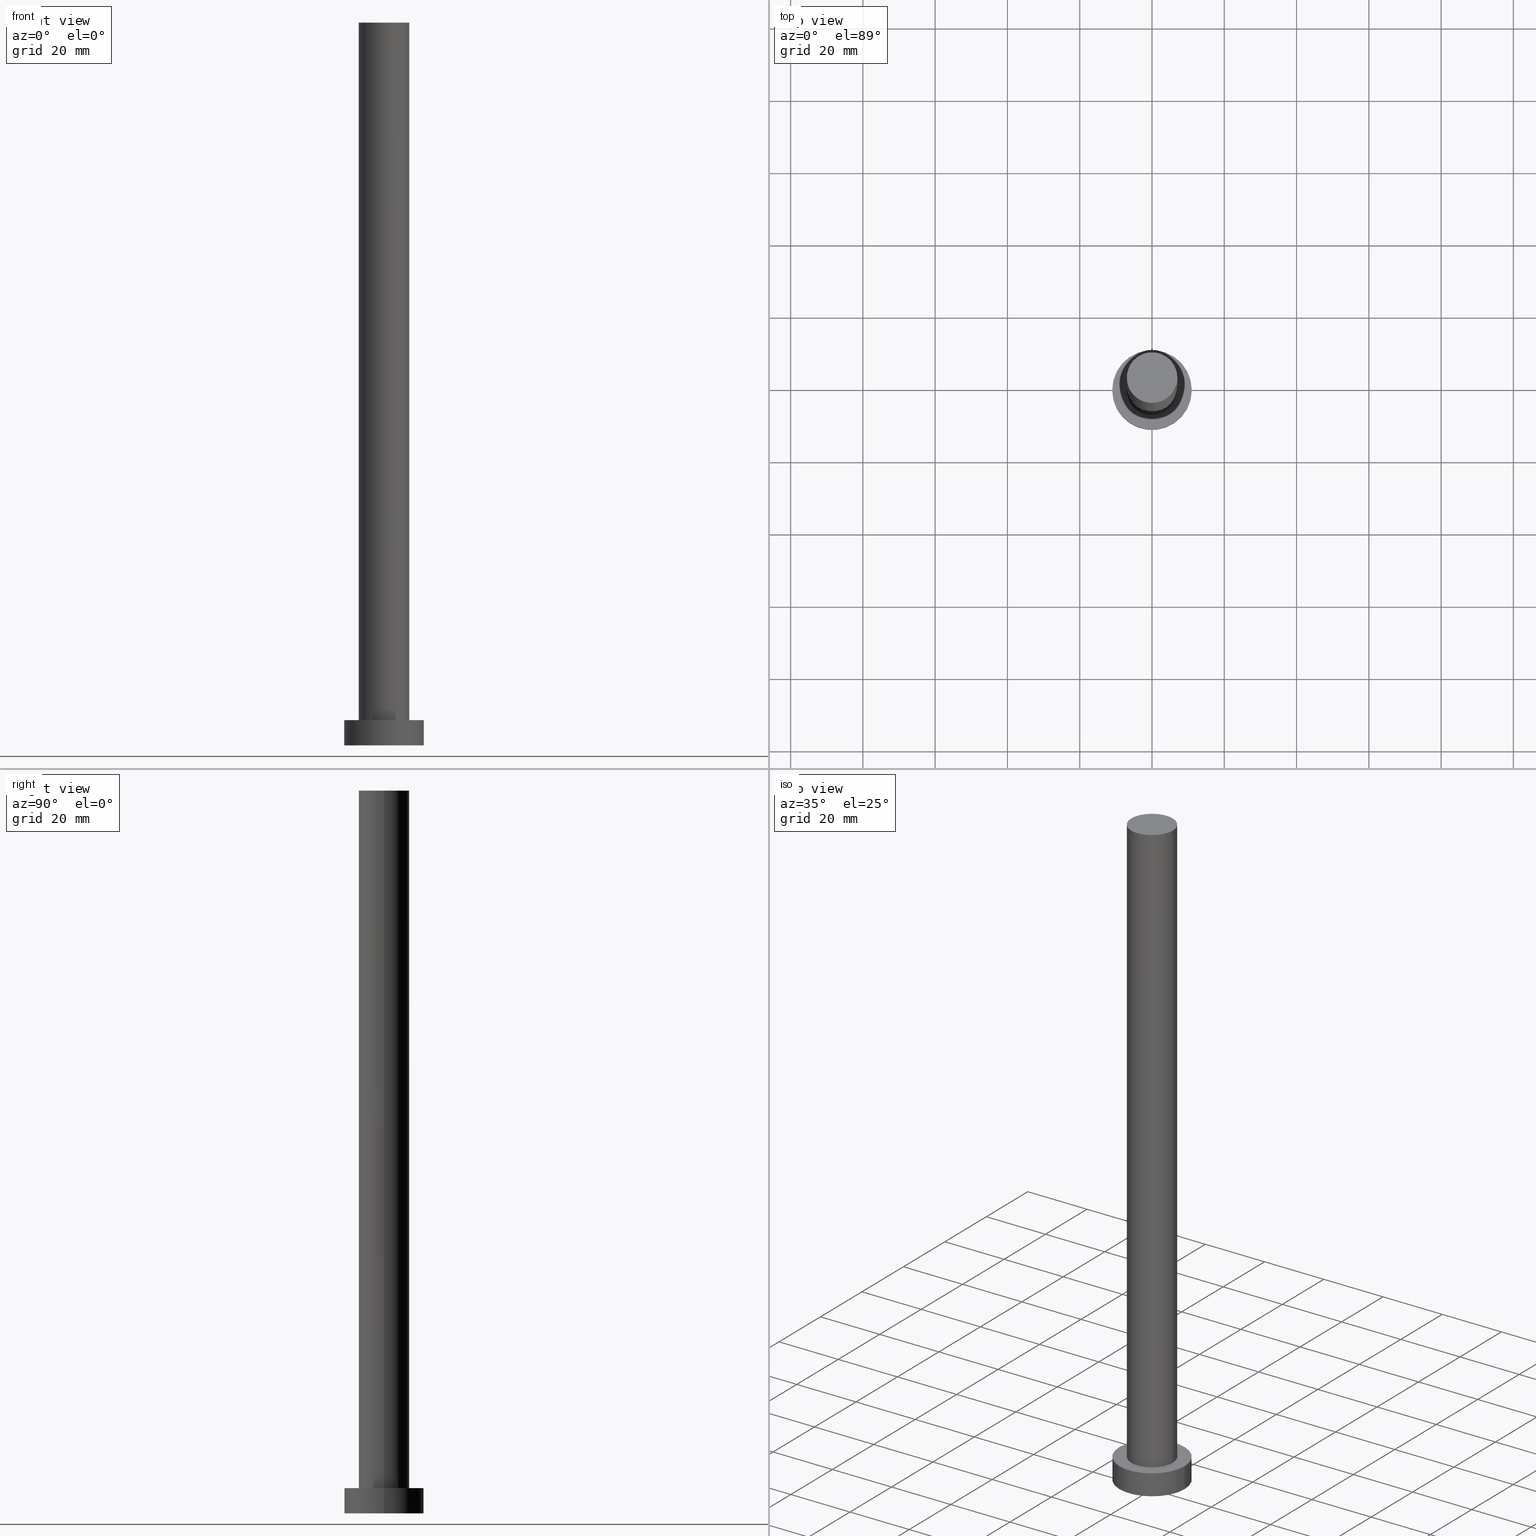
[diagram: canonical four-view strip — front | top / right | iso, engineering-drawing reading convention]
A machine part, canonical four-view strip (front | top / right | iso — engineering-drawing reading convention). The complete STEP part file that produces these views, byte-faithful:
ISO-10303-21;
HEADER;
FILE_DESCRIPTION (( 'STEP AP203' ),
    '1' );
FILE_NAME ('7562.STEP',
    '2023-02-13T10:35:55',
    ( '' ),
    ( '' ),
    'SwSTEP 2.0',
    'SolidWorks 2019',
    '' );
FILE_SCHEMA (( 'CONFIG_CONTROL_DESIGN' ));
ENDSEC;

DATA;
#1 = PERSON_AND_ORGANIZATION_ROLE ( 'creator' ) ;
#2 = DIRECTION ( 'NONE',  ( -0.000000000000000000, -0.000000000000000000, -1.000000000000000000 ) ) ;
#3 = DIRECTION ( 'NONE',  ( 1.000000000000000000, 0.000000000000000000, -0.000000000000000000 ) ) ;
#4 = ORIENTED_EDGE ( 'NONE', *, *, #26, .F. ) ;
#5 = EDGE_CURVE ( 'NONE', #212, #217, #222, .T. ) ;
#6 = CARTESIAN_POINT ( 'NONE',  ( 11.00000000000000000, 1.347111479062088405E-15, 0.000000000000000000 ) ) ;
#7 = AXIS2_PLACEMENT_3D ( 'NONE', #255, #17, #3 ) ;
#8 = LOCAL_TIME ( 11, 35, 55.00000000000000000, #89 ) ;
#9 = ORIENTED_EDGE ( 'NONE', *, *, #5, .F. ) ;
#10 = ORIENTED_EDGE ( 'NONE', *, *, #39, .T. ) ;
#11 = DIRECTION ( 'NONE',  ( 1.000000000000000000, 0.000000000000000000, 0.000000000000000000 ) ) ;
#12 =( LENGTH_UNIT ( ) NAMED_UNIT ( * ) SI_UNIT ( .MILLI., .METRE. ) );
#13 = CARTESIAN_POINT ( 'NONE',  ( 0.000000000000000000, 0.000000000000000000, 200.0000000000000000 ) ) ;
#14 = AXIS2_PLACEMENT_3D ( 'NONE', #238, #96, #20 ) ;
#15 = VERTEX_POINT ( 'NONE', #164 ) ;
#16 = COORDINATED_UNIVERSAL_TIME_OFFSET ( 1, 0, .AHEAD. ) ;
#17 = DIRECTION ( 'NONE',  ( 0.000000000000000000, 0.000000000000000000, 1.000000000000000000 ) ) ;
#18 = SECURITY_CLASSIFICATION_LEVEL ( 'unclassified' ) ;
#19 = VERTEX_POINT ( 'NONE', #246 ) ;
#20 = DIRECTION ( 'NONE',  ( 1.000000000000000000, 0.000000000000000000, 0.000000000000000000 ) ) ;
#21 = APPROVAL ( #25, 'NEUR�EN�' ) ;
#22 = ORIENTED_EDGE ( 'NONE', *, *, #39, .F. ) ;
#23 = CYLINDRICAL_SURFACE ( 'NONE', #190, 7.000000000000000888 ) ;
#24 = EDGE_LOOP ( 'NONE', ( #4, #147 ) ) ;
#25 = APPROVAL_STATUS ( 'not_yet_approved' ) ;
#26 = EDGE_CURVE ( 'NONE', #19, #105, #126, .T. ) ;
#27 = DIRECTION ( 'NONE',  ( 1.000000000000000000, 0.000000000000000000, 0.000000000000000000 ) ) ;
#28 = AXIS2_PLACEMENT_3D ( 'NONE', #197, #237, #59 ) ;
#29 = CC_DESIGN_SECURITY_CLASSIFICATION ( #215, ( #115 ) ) ;
#30 = DIRECTION ( 'NONE',  ( 0.000000000000000000, 0.000000000000000000, 1.000000000000000000 ) ) ;
#31 = ORIENTED_EDGE ( 'NONE', *, *, #193, .T. ) ;
#32 = ORIENTED_EDGE ( 'NONE', *, *, #47, .T. ) ;
#33 = DIRECTION ( 'NONE',  ( -1.000000000000000000, 0.000000000000000000, 0.000000000000000000 ) ) ;
#34 = CC_DESIGN_PERSON_AND_ORGANIZATION_ASSIGNMENT ( #221, #184, ( #115 ) ) ;
#35 = APPLICATION_PROTOCOL_DEFINITION ( 'international standard', 'config_control_design', 1994, #178 ) ;
#36 = ORIENTED_EDGE ( 'NONE', *, *, #47, .F. ) ;
#37 = APPROVAL_PERSON_ORGANIZATION ( #94, #21, #68 ) ;
#38 = COORDINATED_UNIVERSAL_TIME_OFFSET ( 1, 0, .AHEAD. ) ;
#39 = EDGE_CURVE ( 'NONE', #15, #219, #114, .T. ) ;
#40 = CIRCLE ( 'NONE', #14, 11.00000000000000000 ) ;
#41 = EDGE_LOOP ( 'NONE', ( #138, #10 ) ) ;
#42 = DIRECTION ( 'NONE',  ( 0.000000000000000000, 0.000000000000000000, 1.000000000000000000 ) ) ;
#43 = AXIS2_PLACEMENT_3D ( 'NONE', #208, #225, #69 ) ;
#44 = DIRECTION ( 'NONE',  ( -0.000000000000000000, -0.000000000000000000, -1.000000000000000000 ) ) ;
#45 = CARTESIAN_POINT ( 'NONE',  ( -7.000000000000000888, 0.000000000000000000, 200.0000000000000000 ) ) ;
#46 = FACE_OUTER_BOUND ( 'NONE', #218, .T. ) ;
#47 = EDGE_CURVE ( 'NONE', #219, #19, #85, .T. ) ;
#48 = CIRCLE ( 'NONE', #158, 7.000000000000000888 ) ;
#49 =( NAMED_UNIT ( * ) PLANE_ANGLE_UNIT ( ) SI_UNIT ( $, .RADIAN. ) );
#50 = DIRECTION ( 'NONE',  ( 1.000000000000000000, 0.000000000000000000, 0.000000000000000000 ) ) ;
#51 = DIRECTION ( 'NONE',  ( -0.000000000000000000, -0.000000000000000000, -1.000000000000000000 ) ) ;
#52 = AXIS2_PLACEMENT_3D ( 'NONE', #72, #93, #112 ) ;
#53 = CC_DESIGN_PERSON_AND_ORGANIZATION_ASSIGNMENT ( #91, #63, ( #115 ) ) ;
#54 = DATE_AND_TIME ( #148, #8 ) ;
#55 = CALENDAR_DATE ( 2023, 13, 2 ) ;
#56 = AXIS2_PLACEMENT_3D ( 'NONE', #75, #2, #76 ) ;
#57 = SHAPE_DEFINITION_REPRESENTATION ( #236, #231 ) ;
#58 = ORIENTED_EDGE ( 'NONE', *, *, #185, .T. ) ;
#59 = DIRECTION ( 'NONE',  ( -1.000000000000000000, 0.000000000000000000, 0.000000000000000000 ) ) ;
#60 = APPROVAL_PERSON_ORGANIZATION ( #175, #80, #209 ) ;
#61 = DIRECTION ( 'NONE',  ( 0.000000000000000000, 0.000000000000000000, 1.000000000000000000 ) ) ;
#62 = UNCERTAINTY_MEASURE_WITH_UNIT (LENGTH_MEASURE( 1.000000000000000082E-05 ), #12, 'distance_accuracy_value', 'NONE');
#63 = PERSON_AND_ORGANIZATION_ROLE ( 'creator' ) ;
#64 = CARTESIAN_POINT ( 'NONE',  ( 7.000000000000000888, 8.572527594031474176E-16, 200.0000000000000000 ) ) ;
#65 = FACE_OUTER_BOUND ( 'NONE', #240, .T. ) ;
#66 = CC_DESIGN_DATE_AND_TIME_ASSIGNMENT ( #174, #74, ( #87 ) ) ;
#67 = AXIS2_PLACEMENT_3D ( 'NONE', #247, #224, #27 ) ;
#68 = APPROVAL_ROLE ( '' ) ;
#69 = DIRECTION ( 'NONE',  ( 1.000000000000000000, 0.000000000000000000, -0.000000000000000000 ) ) ;
#70 = EDGE_CURVE ( 'NONE', #217, #177, #149, .T. ) ;
#71 = CIRCLE ( 'NONE', #120, 7.000000000000000888 ) ;
#72 = CARTESIAN_POINT ( 'NONE',  ( 0.000000000000000000, 0.000000000000000000, 0.000000000000000000 ) ) ;
#73 = PERSON_AND_ORGANIZATION_ROLE ( 'classification_officer' ) ;
#74 = DATE_TIME_ROLE ( 'creation_date' ) ;
#75 = CARTESIAN_POINT ( 'NONE',  ( 0.000000000000000000, 0.000000000000000000, 200.0000000000000000 ) ) ;
#76 = DIRECTION ( 'NONE',  ( -1.000000000000000000, 0.000000000000000000, 0.000000000000000000 ) ) ;
#77 = APPROVAL_PERSON_ORGANIZATION ( #153, #124, #230 ) ;
#78 = CARTESIAN_POINT ( 'NONE',  ( 0.000000000000000000, 0.000000000000000000, 7.000000000000000000 ) ) ;
#79 = EDGE_LOOP ( 'NONE', ( #22, #31, #242, #36 ) ) ;
#80 = APPROVAL ( #229, 'NEUR�EN�' ) ;
#81 = VECTOR ( 'NONE', #106, 1000.000000000000000 ) ;
#82 = ORIENTED_EDGE ( 'NONE', *, *, #176, .F. ) ;
#83 = CARTESIAN_POINT ( 'NONE',  ( -11.00000000000000000, 0.000000000000000000, 7.000000000000000000 ) ) ;
#84 = CARTESIAN_POINT ( 'NONE',  ( 0.000000000000000000, 0.000000000000000000, 200.0000000000000000 ) ) ;
#85 = LINE ( 'NONE', #170, #154 ) ;
#86 = CARTESIAN_POINT ( 'NONE',  ( 0.000000000000000000, 0.000000000000000000, 0.000000000000000000 ) ) ;
#87 = PRODUCT_DEFINITION ( 'NEZN�M�', '', #115, #144 ) ;
#88 = FACE_OUTER_BOUND ( 'NONE', #79, .T. ) ;
#89 = COORDINATED_UNIVERSAL_TIME_OFFSET ( 1, 0, .AHEAD. ) ;
#90 =( NAMED_UNIT ( * ) SI_UNIT ( $, .STERADIAN. ) SOLID_ANGLE_UNIT ( ) );
#91 = PERSON_AND_ORGANIZATION ( #187, #146 ) ;
#92 = ADVANCED_FACE ( 'NONE', ( #127 ), #130, .T. ) ;
#93 = DIRECTION ( 'NONE',  ( 0.000000000000000000, 0.000000000000000000, 1.000000000000000000 ) ) ;
#94 = PERSON_AND_ORGANIZATION ( #187, #146 ) ;
#95 = PERSON_AND_ORGANIZATION ( #187, #146 ) ;
#96 = DIRECTION ( 'NONE',  ( 0.000000000000000000, 0.000000000000000000, 1.000000000000000000 ) ) ;
#97 = ADVANCED_FACE ( 'NONE', ( #65 ), #205, .T. ) ;
#98 = DIRECTION ( 'NONE',  ( 1.000000000000000000, 0.000000000000000000, 0.000000000000000000 ) ) ;
#99 = ORIENTED_EDGE ( 'NONE', *, *, #207, .F. ) ;
#100 = ORIENTED_EDGE ( 'NONE', *, *, #70, .T. ) ;
#101 = DIRECTION ( 'NONE',  ( 0.000000000000000000, 0.000000000000000000, 1.000000000000000000 ) ) ;
#102 = FACE_BOUND ( 'NONE', #24, .T. ) ;
#103 = CIRCLE ( 'NONE', #182, 11.00000000000000000 ) ;
#104 = EDGE_CURVE ( 'NONE', #212, #133, #220, .T. ) ;
#105 = VERTEX_POINT ( 'NONE', #107 ) ;
#106 = DIRECTION ( 'NONE',  ( -0.000000000000000000, -0.000000000000000000, -1.000000000000000000 ) ) ;
#107 = CARTESIAN_POINT ( 'NONE',  ( 7.000000000000000888, 8.572527594031474176E-16, 7.000000000000000000 ) ) ;
#108 = ADVANCED_FACE ( 'NONE', ( #46 ), #189, .F. ) ;
#109 = PERSON_AND_ORGANIZATION ( #187, #146 ) ;
#110 = AXIS2_PLACEMENT_3D ( 'NONE', #86, #121, #199 ) ;
#111 = APPROVAL_DATE_TIME ( #135, #80 ) ;
#112 = DIRECTION ( 'NONE',  ( 1.000000000000000000, 0.000000000000000000, 0.000000000000000000 ) ) ;
#113 = CALENDAR_DATE ( 2023, 13, 2 ) ;
#114 = CIRCLE ( 'NONE', #181, 7.000000000000000888 ) ;
#115 = PRODUCT_DEFINITION_FORMATION_WITH_SPECIFIED_SOURCE ( 'LIBOVOLN�', '', #196, .NOT_KNOWN. ) ;
#116 = DATE_AND_TIME ( #233, #252 ) ;
#117 = ADVANCED_FACE ( 'NONE', ( #102, #183 ), #201, .T. ) ;
#118 = CYLINDRICAL_SURFACE ( 'NONE', #28, 11.00000000000000000 ) ;
#119 = CIRCLE ( 'NONE', #223, 11.00000000000000000 ) ;
#120 = AXIS2_PLACEMENT_3D ( 'NONE', #159, #42, #11 ) ;
#121 = DIRECTION ( 'NONE',  ( 0.000000000000000000, 0.000000000000000000, 1.000000000000000000 ) ) ;
#122 = CARTESIAN_POINT ( 'NONE',  ( 0.000000000000000000, 0.000000000000000000, 0.000000000000000000 ) ) ;
#123 = CARTESIAN_POINT ( 'NONE',  ( -11.00000000000000000, 0.000000000000000000, 7.000000000000000000 ) ) ;
#124 = APPROVAL ( #206, 'NEUR�EN�' ) ;
#125 = ORIENTED_EDGE ( 'NONE', *, *, #185, .F. ) ;
#126 = CIRCLE ( 'NONE', #141, 7.000000000000000888 ) ;
#127 = FACE_OUTER_BOUND ( 'NONE', #41, .T. ) ;
#128 = APPROVAL_DATE_TIME ( #54, #21 ) ;
#129 = CALENDAR_DATE ( 2023, 13, 2 ) ;
#130 = PLANE ( 'NONE',  #43 ) ;
#131 = AXIS2_PLACEMENT_3D ( 'NONE', #143, #166, #33 ) ;
#132 = CARTESIAN_POINT ( 'NONE',  ( -11.00000000000000000, 0.000000000000000000, 0.000000000000000000 ) ) ;
#133 = VERTEX_POINT ( 'NONE', #132 ) ;
#134 = FACE_OUTER_BOUND ( 'NONE', #139, .T. ) ;
#135 = DATE_AND_TIME ( #113, #137 ) ;
#136 = ORIENTED_EDGE ( 'NONE', *, *, #26, .T. ) ;
#137 = LOCAL_TIME ( 11, 35, 55.00000000000000000, #156 ) ;
#138 = ORIENTED_EDGE ( 'NONE', *, *, #204, .T. ) ;
#139 = EDGE_LOOP ( 'NONE', ( #157, #253, #32, #136 ) ) ;
#140 = ORIENTED_EDGE ( 'NONE', *, *, #70, .F. ) ;
#141 = AXIS2_PLACEMENT_3D ( 'NONE', #188, #101, #186 ) ;
#142 = ADVANCED_FACE ( 'NONE', ( #88 ), #251, .T. ) ;
#143 = CARTESIAN_POINT ( 'NONE',  ( 0.000000000000000000, 0.000000000000000000, 7.000000000000000000 ) ) ;
#144 = DESIGN_CONTEXT ( 'detailed design', #178, 'design' ) ;
#145 = ADVANCED_FACE ( 'NONE', ( #241 ), #118, .T. ) ;
#146 = ORGANIZATION ( 'NEUR�EN�', 'NEUR�EN�', '' ) ;
#147 = ORIENTED_EDGE ( 'NONE', *, *, #180, .F. ) ;
#148 = CALENDAR_DATE ( 2023, 13, 2 ) ;
#149 = LINE ( 'NONE', #226, #200 ) ;
#150 = COORDINATED_UNIVERSAL_TIME_OFFSET ( 1, 0, .AHEAD. ) ;
#151 = ADVANCED_FACE ( 'NONE', ( #134 ), #23, .T. ) ;
#152 = DATE_TIME_ROLE ( 'classification_date' ) ;
#153 = PERSON_AND_ORGANIZATION ( #187, #146 ) ;
#154 = VECTOR ( 'NONE', #249, 1000.000000000000000 ) ;
#155 =( GEOMETRIC_REPRESENTATION_CONTEXT ( 3 ) GLOBAL_UNCERTAINTY_ASSIGNED_CONTEXT ( ( #62 ) ) GLOBAL_UNIT_ASSIGNED_CONTEXT ( ( #12, #49, #90 ) ) REPRESENTATION_CONTEXT ( 'NONE', 'WORKASPACE' ) );
#156 = COORDINATED_UNIVERSAL_TIME_OFFSET ( 1, 0, .AHEAD. ) ;
#157 = ORIENTED_EDGE ( 'NONE', *, *, #193, .F. ) ;
#158 = AXIS2_PLACEMENT_3D ( 'NONE', #84, #244, #50 ) ;
#159 = CARTESIAN_POINT ( 'NONE',  ( 0.000000000000000000, 0.000000000000000000, 7.000000000000000000 ) ) ;
#160 = ORIENTED_EDGE ( 'NONE', *, *, #5, .T. ) ;
#161 = ORIENTED_EDGE ( 'NONE', *, *, #104, .T. ) ;
#162 = DIRECTION ( 'NONE',  ( -0.000000000000000000, -0.000000000000000000, -1.000000000000000000 ) ) ;
#163 = CARTESIAN_POINT ( 'NONE',  ( 11.00000000000000000, 1.347111479062088405E-15, 7.000000000000000000 ) ) ;
#164 = CARTESIAN_POINT ( 'NONE',  ( 7.000000000000000888, 8.572527594031474176E-16, 200.0000000000000000 ) ) ;
#165 = DIRECTION ( 'NONE',  ( 0.000000000000000000, 0.000000000000000000, 1.000000000000000000 ) ) ;
#166 = DIRECTION ( 'NONE',  ( -0.000000000000000000, -0.000000000000000000, -1.000000000000000000 ) ) ;
#167 = ORIENTED_EDGE ( 'NONE', *, *, #207, .T. ) ;
#168 = VECTOR ( 'NONE', #44, 1000.000000000000000 ) ;
#169 = APPLICATION_CONTEXT ( 'configuration controlled 3d designs of mechanical parts and assemblies' ) ;
#170 = CARTESIAN_POINT ( 'NONE',  ( -7.000000000000000888, 0.000000000000000000, 200.0000000000000000 ) ) ;
#171 = DATE_AND_TIME ( #55, #191 ) ;
#172 = PRODUCT_RELATED_PRODUCT_CATEGORY ( 'detail', '', ( #196 ) ) ;
#173 = CC_DESIGN_APPROVAL ( #21, ( #115 ) ) ;
#174 = DATE_AND_TIME ( #129, #232 ) ;
#175 = PERSON_AND_ORGANIZATION ( #187, #146 ) ;
#176 = EDGE_CURVE ( 'NONE', #217, #212, #119, .T. ) ;
#177 = VERTEX_POINT ( 'NONE', #6 ) ;
#178 = APPLICATION_CONTEXT ( 'configuration controlled 3d designs of mechanical parts and assemblies' ) ;
#179 = DIRECTION ( 'NONE',  ( -1.000000000000000000, 0.000000000000000000, 0.000000000000000000 ) ) ;
#180 = EDGE_CURVE ( 'NONE', #105, #19, #71, .T. ) ;
#181 = AXIS2_PLACEMENT_3D ( 'NONE', #13, #165, #203 ) ;
#182 = AXIS2_PLACEMENT_3D ( 'NONE', #122, #30, #198 ) ;
#183 = FACE_OUTER_BOUND ( 'NONE', #202, .T. ) ;
#184 = PERSON_AND_ORGANIZATION_ROLE ( 'design_supplier' ) ;
#185 = EDGE_CURVE ( 'NONE', #133, #177, #40, .T. ) ;
#186 = DIRECTION ( 'NONE',  ( 1.000000000000000000, 0.000000000000000000, 0.000000000000000000 ) ) ;
#187 = PERSON ( 'NEUR�EN�', 'NEUR�EN�', 'NEUR�EN�', ('NEUR�EN�'), ('NEUR�EN�'), ('NEUR�EN�') ) ;
#188 = CARTESIAN_POINT ( 'NONE',  ( 0.000000000000000000, 0.000000000000000000, 7.000000000000000000 ) ) ;
#189 = PLANE ( 'NONE',  #110 ) ;
#190 = AXIS2_PLACEMENT_3D ( 'NONE', #216, #162, #179 ) ;
#191 = LOCAL_TIME ( 11, 35, 55.00000000000000000, #16 ) ;
#192 = APPLICATION_PROTOCOL_DEFINITION ( 'international standard', 'config_control_design', 1994, #169 ) ;
#193 = EDGE_CURVE ( 'NONE', #15, #105, #243, .T. ) ;
#194 = CC_DESIGN_APPROVAL ( #80, ( #215 ) ) ;
#195 = APPROVAL_DATE_TIME ( #171, #124 ) ;
#196 = PRODUCT ( '7562', '7562', '', ( #211 ) ) ;
#197 = CARTESIAN_POINT ( 'NONE',  ( 0.000000000000000000, 0.000000000000000000, 7.000000000000000000 ) ) ;
#198 = DIRECTION ( 'NONE',  ( 1.000000000000000000, 0.000000000000000000, 0.000000000000000000 ) ) ;
#199 = DIRECTION ( 'NONE',  ( 1.000000000000000000, 0.000000000000000000, -0.000000000000000000 ) ) ;
#200 = VECTOR ( 'NONE', #51, 1000.000000000000000 ) ;
#201 = PLANE ( 'NONE',  #7 ) ;
#202 = EDGE_LOOP ( 'NONE', ( #160, #235 ) ) ;
#203 = DIRECTION ( 'NONE',  ( 1.000000000000000000, 0.000000000000000000, 0.000000000000000000 ) ) ;
#204 = EDGE_CURVE ( 'NONE', #219, #15, #48, .T. ) ;
#205 = CYLINDRICAL_SURFACE ( 'NONE', #131, 11.00000000000000000 ) ;
#206 = APPROVAL_STATUS ( 'not_yet_approved' ) ;
#207 = EDGE_CURVE ( 'NONE', #177, #133, #103, .T. ) ;
#208 = CARTESIAN_POINT ( 'NONE',  ( 0.000000000000000000, 0.000000000000000000, 200.0000000000000000 ) ) ;
#209 = APPROVAL_ROLE ( '' ) ;
#210 = ORIENTED_EDGE ( 'NONE', *, *, #104, .F. ) ;
#211 = MECHANICAL_CONTEXT ( 'NONE', #169, 'mechanical' ) ;
#212 = VERTEX_POINT ( 'NONE', #83 ) ;
#214 = CLOSED_SHELL ( 'NONE', ( #142, #145, #97, #117, #108, #151, #92 ) ) ;
#213 = CC_DESIGN_DATE_AND_TIME_ASSIGNMENT ( #116, #152, ( #215 ) ) ;
#215 = SECURITY_CLASSIFICATION ( '', '', #18 ) ;
#216 = CARTESIAN_POINT ( 'NONE',  ( 0.000000000000000000, 0.000000000000000000, 200.0000000000000000 ) ) ;
#217 = VERTEX_POINT ( 'NONE', #163 ) ;
#218 = EDGE_LOOP ( 'NONE', ( #125, #99 ) ) ;
#219 = VERTEX_POINT ( 'NONE', #45 ) ;
#220 = LINE ( 'NONE', #123, #81 ) ;
#221 = PERSON_AND_ORGANIZATION ( #187, #146 ) ;
#222 = CIRCLE ( 'NONE', #67, 11.00000000000000000 ) ;
#223 = AXIS2_PLACEMENT_3D ( 'NONE', #78, #61, #98 ) ;
#224 = DIRECTION ( 'NONE',  ( 0.000000000000000000, 0.000000000000000000, 1.000000000000000000 ) ) ;
#225 = DIRECTION ( 'NONE',  ( 0.000000000000000000, 0.000000000000000000, 1.000000000000000000 ) ) ;
#226 = CARTESIAN_POINT ( 'NONE',  ( 11.00000000000000000, 1.347111479062088405E-15, 7.000000000000000000 ) ) ;
#227 = MANIFOLD_SOLID_BREP ( 'P�idat vysunut�m3', #214 ) ;
#228 = CC_DESIGN_PERSON_AND_ORGANIZATION_ASSIGNMENT ( #95, #73, ( #215 ) ) ;
#229 = APPROVAL_STATUS ( 'not_yet_approved' ) ;
#230 = APPROVAL_ROLE ( '' ) ;
#231 = ADVANCED_BREP_SHAPE_REPRESENTATION ( '7562', ( #227, #52 ), #155 ) ;
#232 = LOCAL_TIME ( 11, 35, 55.00000000000000000, #150 ) ;
#233 = CALENDAR_DATE ( 2023, 13, 2 ) ;
#234 = CC_DESIGN_PERSON_AND_ORGANIZATION_ASSIGNMENT ( #250, #1, ( #87 ) ) ;
#235 = ORIENTED_EDGE ( 'NONE', *, *, #176, .T. ) ;
#236 = PRODUCT_DEFINITION_SHAPE ( 'NONE', 'NONE',  #87 ) ;
#237 = DIRECTION ( 'NONE',  ( -0.000000000000000000, -0.000000000000000000, -1.000000000000000000 ) ) ;
#238 = CARTESIAN_POINT ( 'NONE',  ( 0.000000000000000000, 0.000000000000000000, 0.000000000000000000 ) ) ;
#239 = EDGE_LOOP ( 'NONE', ( #82, #100, #167, #210 ) ) ;
#240 = EDGE_LOOP ( 'NONE', ( #140, #9, #161, #58 ) ) ;
#241 = FACE_OUTER_BOUND ( 'NONE', #239, .T. ) ;
#242 = ORIENTED_EDGE ( 'NONE', *, *, #180, .T. ) ;
#243 = LINE ( 'NONE', #64, #168 ) ;
#244 = DIRECTION ( 'NONE',  ( 0.000000000000000000, 0.000000000000000000, 1.000000000000000000 ) ) ;
#245 = CC_DESIGN_PERSON_AND_ORGANIZATION_ASSIGNMENT ( #109, #254, ( #196 ) ) ;
#246 = CARTESIAN_POINT ( 'NONE',  ( -7.000000000000000888, 0.000000000000000000, 7.000000000000000000 ) ) ;
#247 = CARTESIAN_POINT ( 'NONE',  ( 0.000000000000000000, 0.000000000000000000, 7.000000000000000000 ) ) ;
#248 = CC_DESIGN_APPROVAL ( #124, ( #87 ) ) ;
#249 = DIRECTION ( 'NONE',  ( -0.000000000000000000, -0.000000000000000000, -1.000000000000000000 ) ) ;
#250 = PERSON_AND_ORGANIZATION ( #187, #146 ) ;
#251 = CYLINDRICAL_SURFACE ( 'NONE', #56, 7.000000000000000888 ) ;
#252 = LOCAL_TIME ( 11, 35, 55.00000000000000000, #38 ) ;
#253 = ORIENTED_EDGE ( 'NONE', *, *, #204, .F. ) ;
#254 = PERSON_AND_ORGANIZATION_ROLE ( 'design_owner' ) ;
#255 = CARTESIAN_POINT ( 'NONE',  ( 0.000000000000000000, 0.000000000000000000, 7.000000000000000000 ) ) ;
ENDSEC;
END-ISO-10303-21;
